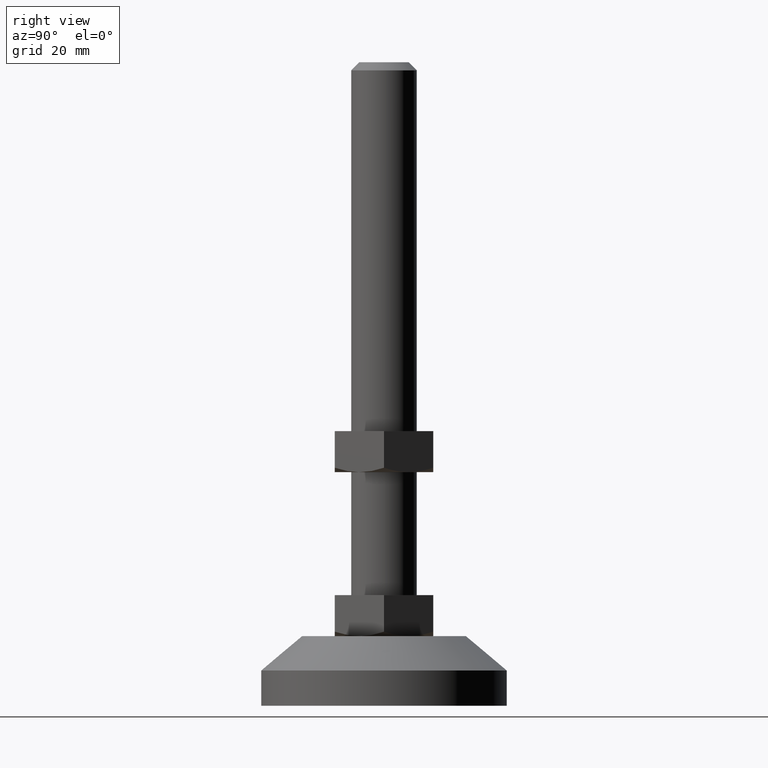
[diagram: clean part render]
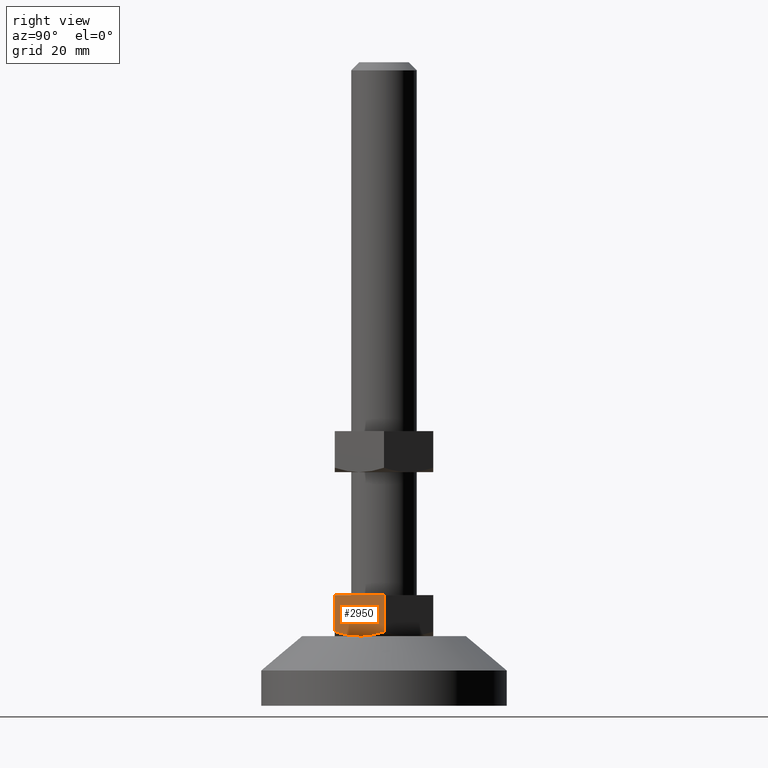
[diagram: same view with one face highlighted and labeled with its STEP entity id]
A machine part, right view. The second image highlights one B-rep face of the part: STEP entity #2950.
In plain terms, the highlighted face is a freeform B-spline surface patch.
Its self-contained STEP definition (entity closure, byte-faithful):
#2836=CARTESIAN_POINT('',(6.921797000000001,-12.0,27.0));
#2837=VERTEX_POINT('',#2836);
#2843=CARTESIAN_POINT('',(13.850000000000000,0.0,27.0));
#2844=VERTEX_POINT('',#2843);
#2845=CARTESIAN_POINT('',(6.921797000000001,-12.0,27.0));
#2846=CARTESIAN_POINT('',(13.850000000000000,0.0,27.0));
#2847=QUASI_UNIFORM_CURVE('',1,(#2845,#2846),.UNSPECIFIED.,.F.,.U.);
#2848=EDGE_CURVE('',#2837,#2844,#2847,.T.);
#2871=CARTESIAN_POINT('',(13.850000000000000,1.662383E-015,18.071796703249500));
#2872=VERTEX_POINT('',#2871);
#2898=CARTESIAN_POINT('',(13.850000000000000,0.0,27.0));
#2899=CARTESIAN_POINT('',(13.850000000000000,1.662383E-015,18.071796703249500));
#2900=QUASI_UNIFORM_CURVE('',1,(#2898,#2899),.UNSPECIFIED.,.F.,.U.);
#2901=EDGE_CURVE('',#2844,#2872,#2900,.T.);
#2906=CARTESIAN_POINT('',(14.196063726421810,0.599399976741667,16.501020711140789));
#2907=CARTESIAN_POINT('',(6.575733087749316,-12.599400298606749,16.501020711140789));
#2908=CARTESIAN_POINT('',(14.196063726421810,0.599399976741667,27.499475477596182));
#2909=CARTESIAN_POINT('',(6.575733087749316,-12.599400298606749,27.499475477596182));
#2910=B_SPLINE_SURFACE_WITH_KNOTS('',1,1,((#2906,#2908),(#2907,#2909)),.UNSPECIFIED.,.F.,.F.,.U.,(2,2),(2,2),(0.0,15.240661657265020),(0.0,10.998454766455390),.UNSPECIFIED.);
#2911=CARTESIAN_POINT('',(10.646941117000200,-5.547867249536012,17.006981388879790));
#2912=VERTEX_POINT('',#2911);
#2913=CARTESIAN_POINT('',(6.921797000000001,-12.0,18.073646796981048));
#2914=VERTEX_POINT('',#2913);
#2915=CARTESIAN_POINT('',(10.646941117000200,-5.547867249536012,17.006981388879790));
#2916=CARTESIAN_POINT('',(10.562251426803821,-5.694553959968602,17.002749320347931));
#2917=CARTESIAN_POINT('',(10.477414073128330,-5.841496430566194,17.000573178554092));
#2918=CARTESIAN_POINT('',(10.245164426292780,-6.243764244975639,17.000353354127249));
#2919=CARTESIAN_POINT('',(10.097158140227030,-6.500118413219729,17.006525190391290));
#2920=CARTESIAN_POINT('',(9.802501012175652,-7.010479052393902,17.031290246755219));
#2921=CARTESIAN_POINT('',(9.655684875938672,-7.264771821102722,17.049855351528809));
#2922=CARTESIAN_POINT('',(9.216707068974856,-8.025102970535148,17.123293864281841));
#2923=CARTESIAN_POINT('',(8.926019431075918,-8.528588251759013,17.195951867589450));
#2924=CARTESIAN_POINT('',(8.059135804804514,-10.030073307342059,17.476415348034870));
#2925=CARTESIAN_POINT('',(7.488098767723468,-11.019137516826509,17.746464934868509));
#2926=CARTESIAN_POINT('',(6.921797000000001,-12.0,18.073646796981048));
#2927=B_SPLINE_CURVE_WITH_KNOTS('',3,(#2915,#2916,#2917,#2918,#2919,#2920,#2921,#2922,#2923,#2924,#2925,#2926),.UNSPECIFIED.,.F.,.U.,(4,2,2,2,2,4),(0.463929932335229,0.500000000000000,0.562500000000000,0.625000000000000,0.750000000000000,1.0),.UNSPECIFIED.);
#2928=EDGE_CURVE('',#2912,#2914,#2927,.T.);
#2929=ORIENTED_EDGE('',*,*,#2928,.F.);
#2930=CARTESIAN_POINT('',(13.850000000000000,1.662383E-015,18.071796703249500));
#2931=CARTESIAN_POINT('',(13.284368882389250,-0.979703008395899,17.745228142902331));
#2932=CARTESIAN_POINT('',(12.714611927454129,-1.966552175650145,17.476103908818459));
#2933=CARTESIAN_POINT('',(11.851059074089310,-3.462271350524842,17.196575443451248));
#2934=CARTESIAN_POINT('',(11.561718321290609,-3.963424820649195,17.124141902949422));
#2935=CARTESIAN_POINT('',(11.063643881830890,-4.826116057216889,17.040347937378709));
#2936=CARTESIAN_POINT('',(10.855741290816560,-5.186214323977891,17.017416108560290));
#2937=CARTESIAN_POINT('',(10.646941117000200,-5.547867249536012,17.006981388879790));
#2938=B_SPLINE_CURVE_WITH_KNOTS('',3,(#2930,#2931,#2932,#2933,#2934,#2935,#2936,#2937),.UNSPECIFIED.,.F.,.U.,(4,2,2,4),(0.0,0.250000000000000,0.375000000000000,0.463929932335229),.UNSPECIFIED.);
#2939=EDGE_CURVE('',#2872,#2912,#2938,.T.);
#2940=ORIENTED_EDGE('',*,*,#2939,.F.);
#2941=ORIENTED_EDGE('',*,*,#2901,.F.);
#2942=ORIENTED_EDGE('',*,*,#2848,.F.);
#2943=CARTESIAN_POINT('',(6.921797000000001,-12.0,27.0));
#2944=CARTESIAN_POINT('',(6.921797000000001,-12.0,18.073646796981048));
#2945=QUASI_UNIFORM_CURVE('',1,(#2943,#2944),.UNSPECIFIED.,.F.,.U.);
#2946=EDGE_CURVE('',#2837,#2914,#2945,.T.);
#2947=ORIENTED_EDGE('',*,*,#2946,.T.);
#2948=EDGE_LOOP('',(#2929,#2940,#2941,#2942,#2947));
#2949=FACE_OUTER_BOUND('',#2948,.T.);
#2950=ADVANCED_FACE('',(#2949),#2910,.F.);